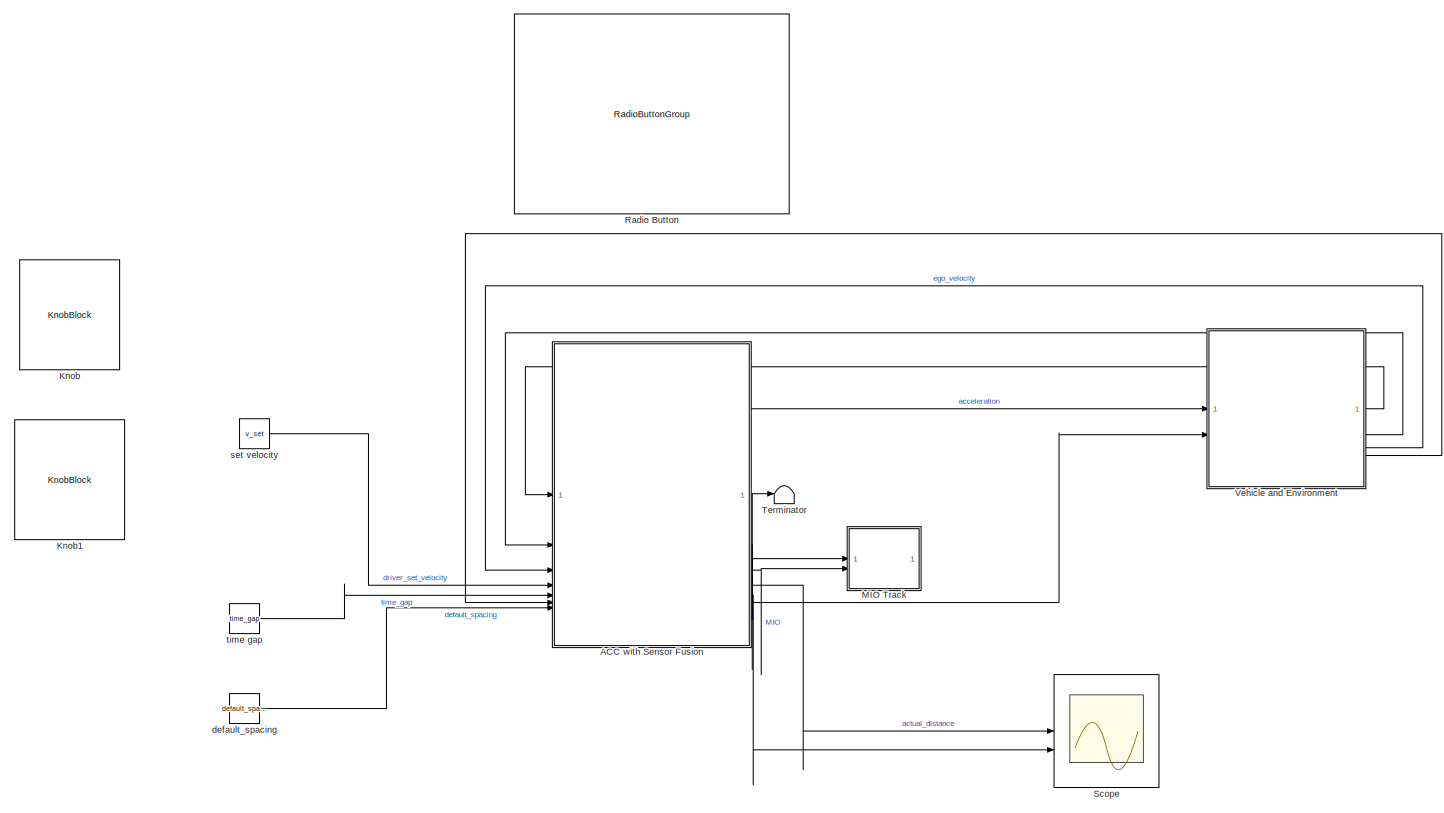
[diagram: root canvas - part 1/1, most of the canvas]
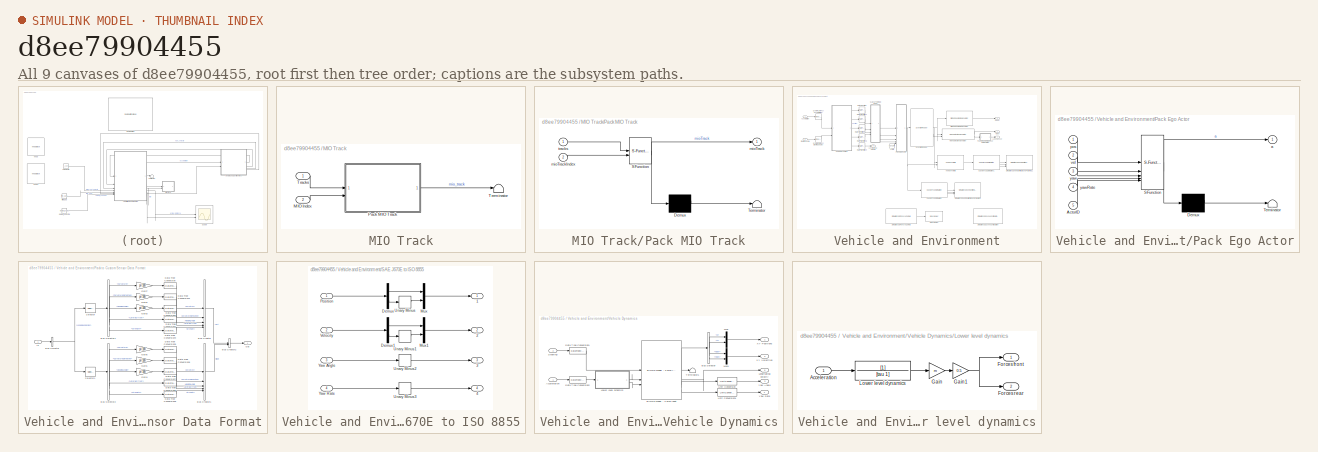
[diagram: thumbnail index - all 9 canvases of the model, root first then tree order]
MODEL slx_d8ee79904455
KIND model
CONFIG AbsTol = auto
CONFIG EnableMultiTasking = off
CONFIG FixedStep = 0.1
CONFIG MaxStep = auto
CONFIG MinStep = auto
CONFIG RelTol = 1e-3
CONFIG SampleTimeConstraint = Unconstrained
CONFIG SolverName = VariableStepAuto
CONFIG StartTime = 0.0
CONFIG StopTime = 30
BLOCK [ModelReference] ACC with Sensor Fusion
  CodeInterface = Top model
  ModelNameDialog = mpcACCWithSensorFusion.slx
  ModelReferenceVersion = 7.29
  PortSchema = {"entries":[{"content":{"sides":[{"content":{"connectorIds":["In1","In2","In6","In3","In4","In5","In7"]},"type":"ConnectorPlacement.EquallySpacedRectSide","uuid":"0a2f139f-ea02-4ae5-80e3-001557372466"},{"content":{"connectorIds":["Out1","Out2","Out3","Out4","Out5","Out6"],"side":"RIGHT"},"type":"ConnectorPlacement.EquallySpacedRectSide","uuid":"98612c27-09f5-4b9c-9afc-7845304978e5"},{"content":{"s...<+293ch>
BLOCK [KnobBlock] Knob
  ScaleMax = 40
BLOCK [KnobBlock] Knob1
  ScaleMax = 3
BLOCK [SubSystem] MIO Track
BLOCK [Inport] MIO Track/MIO Index
  Port = 2
BLOCK [SubSystem] MIO Track/Pack MIO Track
  ErrorFcn = Stateflow.Translate.translate
  PermitHierarchicalResolution = ExplicitOnly
  SFBlockType = MATLAB Function
  TreatAsAtomicUnit = on
BLOCK [Demux] MIO Track/Pack MIO Track/ Demux 
  Outputs = 1
BLOCK [S-Function] MIO Track/Pack MIO Track/ SFunction 
  EnableBusSupport = on
  FunctionName = sf_sfun
  PortCounts = [2 2]
  SFcnIsStateOwnerBlock = off
  SFunctionDeploymentMode = off
  Tag = Stateflow S-Function 2
BLOCK [Terminator] MIO Track/Pack MIO Track/ Terminator 
BLOCK [Outport] MIO Track/Pack MIO Track/mioTrack
  VectorParamsAs1DForOutWhenUnconnected = off
BLOCK [Inport] MIO Track/Pack MIO Track/mioTrackIndex
  Port = 2
BLOCK [Inport] MIO Track/Pack MIO Track/tracks
BLOCK [Terminator] MIO Track/Terminator
BLOCK [Inport] MIO Track/Tracks
BLOCK [RadioButtonGroup] Radio Button
  ButtonGroupName = Group
  SelectedLabel = Pleasent Weather
BLOCK [Scope] Scope
  Floating = off
  NumInputPorts = 2
  ScopeSpecificationString = Simulink.scopes.TimeScopeBlockCfg('CurrentConfiguration', extmgr.ConfigurationSet(extmgr.Configuration('Core','General UI',true),extmgr.Configuration('Core','Source UI',true),extmgr.Configuration('Sources','WiredSimulink',true),extmgr.Configuration('Visuals','Time Domain',true),extmgr.Configuration('Tools','Plot Navigation',true),extmgr.Configuration('Tools','Measurements',true)),'Version','2023b'...<+1ch>
BLOCK [Terminator] Terminator
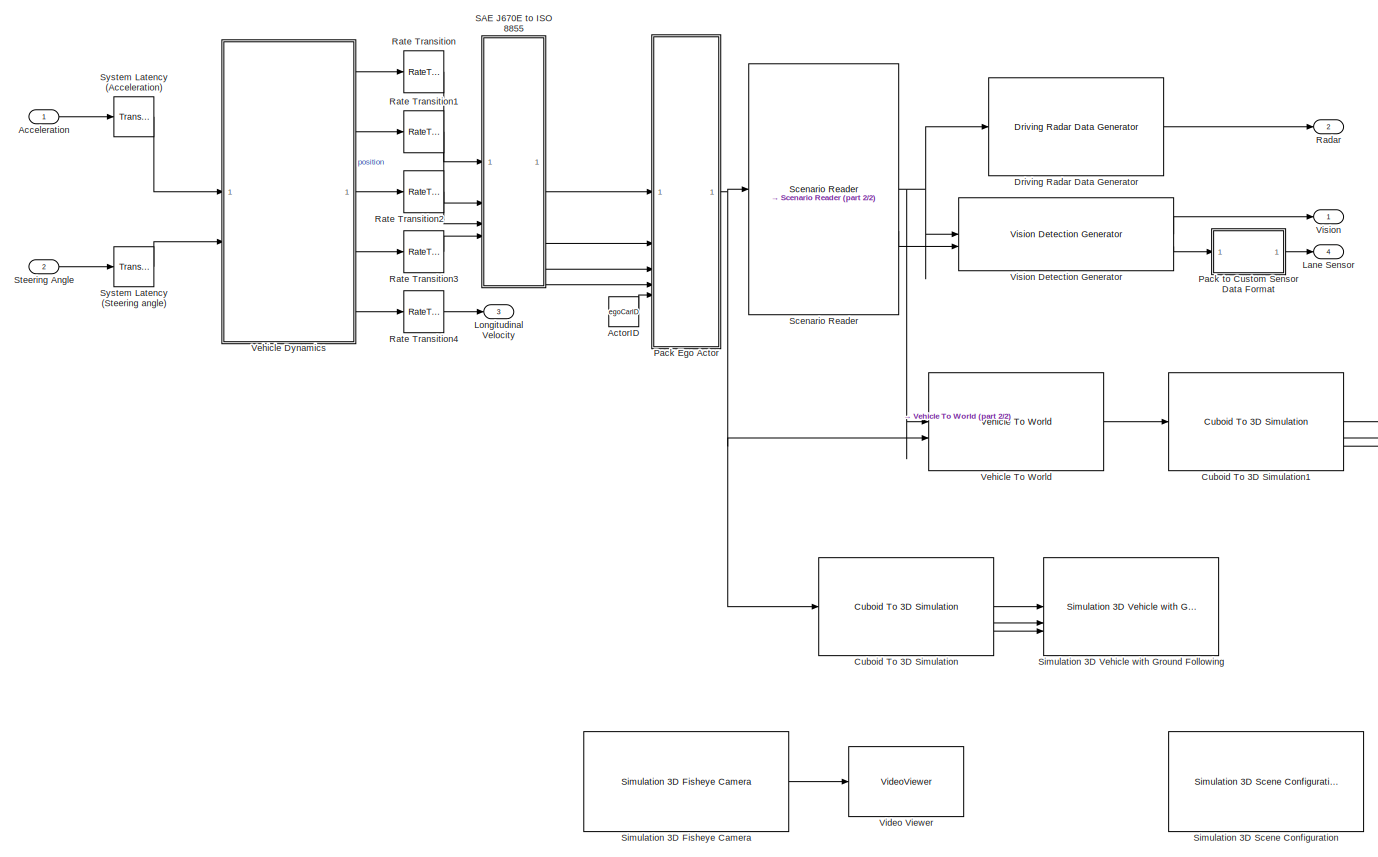
[diagram: Vehicle and Environment - part 1/2, most of the canvas]
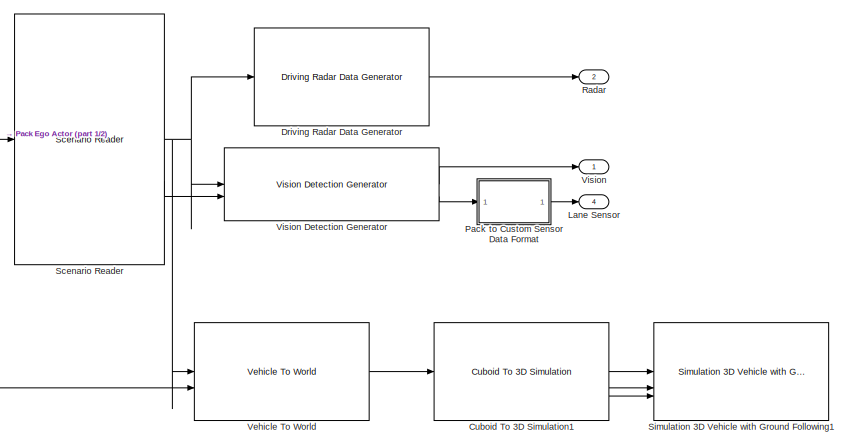
[diagram: Vehicle and Environment - part 2/2, middle right region]
BLOCK [SubSystem] Vehicle and Environment
BLOCK [Inport] Vehicle and Environment/Acceleration
  Unit = m/s^2
BLOCK [Constant] Vehicle and Environment/ActorID
  Value = egoCarID
BLOCK [Reference] Vehicle and Environment/Cuboid To 3D Simulation  REF=drivingscenarioandsensors/Cuboid To 3D Simulation
  Commented = on
  SourceBlock = drivingscenarioandsensors/Cuboid To 3D Simulation
  SourceType = driving.scenario.internal.CuboidTo3DSimulation
BLOCK [Reference] Vehicle and Environment/Cuboid To 3D Simulation1  REF=drivingscenarioandsensors/Cuboid To 3D Simulation
  Commented = on
  SourceBlock = drivingscenarioandsensors/Cuboid To 3D Simulation
  SourceType = driving.scenario.internal.CuboidTo3DSimulation
BLOCK [Reference] Vehicle and Environment/Driving Radar Data Generator  REF=drivingscenarioandsensors/Driving Radar Data Generator
  SourceBlock = drivingscenarioandsensors/Driving Radar Data Generator
  SourceType = drivingRadarDataGenerator
BLOCK [Outport] Vehicle and Environment/Lane Sensor
  Port = 4
  VectorParamsAs1DForOutWhenUnconnected = off
BLOCK [Outport] Vehicle and Environment/Longitudinal Velocity
  Port = 3
  VectorParamsAs1DForOutWhenUnconnected = off
BLOCK [SubSystem] Vehicle and Environment/Pack Ego Actor
  ErrorFcn = Stateflow.Translate.translate
  PermitHierarchicalResolution = ExplicitOnly
  SFBlockType = MATLAB Function
  TreatAsAtomicUnit = on
BLOCK [Demux] Vehicle and Environment/Pack Ego Actor/ Demux 
  Outputs = 1
BLOCK [S-Function] Vehicle and Environment/Pack Ego Actor/ SFunction 
  EnableBusSupport = on
  FunctionName = sf_sfun
  PortCounts = [5 2]
  SFcnIsStateOwnerBlock = off
  SFunctionDeploymentMode = off
  Tag = Stateflow S-Function 1
BLOCK [Terminator] Vehicle and Environment/Pack Ego Actor/ Terminator 
BLOCK [Inport] Vehicle and Environment/Pack Ego Actor/ActorID
  Port = 5
BLOCK [Outport] Vehicle and Environment/Pack Ego Actor/a
  VectorParamsAs1DForOutWhenUnconnected = off
BLOCK [Inport] Vehicle and Environment/Pack Ego Actor/pos
BLOCK [Inport] Vehicle and Environment/Pack Ego Actor/vel
  Port = 2
BLOCK [Inport] Vehicle and Environment/Pack Ego Actor/yaw
  Port = 3
BLOCK [Inport] Vehicle and Environment/Pack Ego Actor/yawRate
  Port = 4
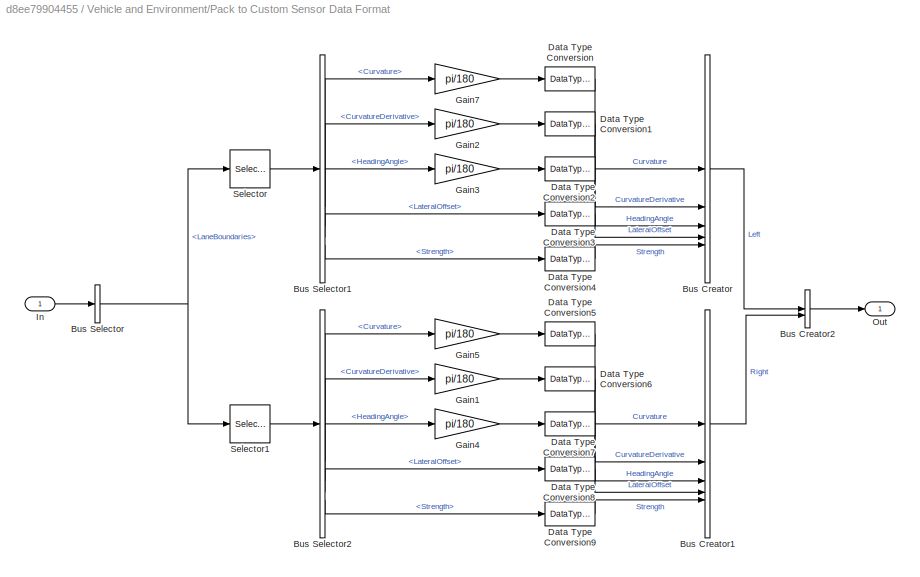
BLOCK [SubSystem] Vehicle and Environment/Pack to Custom Sensor Data Format
BLOCK [BusCreator] Vehicle and Environment/Pack to Custom Sensor Data Format/Bus Creator
  DisplayOption = bar
  InheritFromInputs = on
  Inputs = 5
  OutDataTypeStr = Bus: LaneSensorBoundaries
BLOCK [BusCreator] Vehicle and Environment/Pack to Custom Sensor Data Format/Bus Creator1
  DisplayOption = bar
  InheritFromInputs = on
  Inputs = 5
  OutDataTypeStr = Bus: LaneSensorBoundaries
BLOCK [BusCreator] Vehicle and Environment/Pack to Custom Sensor Data Format/Bus Creator2
  DisplayOption = bar
  InheritFromInputs = on
  Inputs = 2
  OutDataTypeStr = Bus: LaneSensor
BLOCK [BusSelector] Vehicle and Environment/Pack to Custom Sensor Data Format/Bus Selector
  OutputSignals = LaneBoundaries
BLOCK [BusSelector] Vehicle and Environment/Pack to Custom Sensor Data Format/Bus Selector1
  OutputSignals = Curvature,CurvatureDerivative,HeadingAngle,LateralOffset,Strength
BLOCK [BusSelector] Vehicle and Environment/Pack to Custom Sensor Data Format/Bus Selector2
  OutputSignals = Curvature,CurvatureDerivative,HeadingAngle,LateralOffset,Strength
BLOCK [DataTypeConversion] Vehicle and Environment/Pack to Custom Sensor Data Format/Data Type Conversion
  RndMeth = Floor
  SaturateOnIntegerOverflow = off
BLOCK [DataTypeConversion] Vehicle and Environment/Pack to Custom Sensor Data Format/Data Type Conversion1
  RndMeth = Floor
  SaturateOnIntegerOverflow = off
BLOCK [DataTypeConversion] Vehicle and Environment/Pack to Custom Sensor Data Format/Data Type Conversion2
  RndMeth = Floor
  SaturateOnIntegerOverflow = off
BLOCK [DataTypeConversion] Vehicle and Environment/Pack to Custom Sensor Data Format/Data Type Conversion3
  RndMeth = Floor
  SaturateOnIntegerOverflow = off
BLOCK [DataTypeConversion] Vehicle and Environment/Pack to Custom Sensor Data Format/Data Type Conversion4
  RndMeth = Floor
  SaturateOnIntegerOverflow = off
BLOCK [DataTypeConversion] Vehicle and Environment/Pack to Custom Sensor Data Format/Data Type Conversion5
  RndMeth = Floor
  SaturateOnIntegerOverflow = off
BLOCK [DataTypeConversion] Vehicle and Environment/Pack to Custom Sensor Data Format/Data Type Conversion6
  RndMeth = Floor
  SaturateOnIntegerOverflow = off
BLOCK [DataTypeConversion] Vehicle and Environment/Pack to Custom Sensor Data Format/Data Type Conversion7
  RndMeth = Floor
  SaturateOnIntegerOverflow = off
BLOCK [DataTypeConversion] Vehicle and Environment/Pack to Custom Sensor Data Format/Data Type Conversion8
  RndMeth = Floor
  SaturateOnIntegerOverflow = off
BLOCK [DataTypeConversion] Vehicle and Environment/Pack to Custom Sensor Data Format/Data Type Conversion9
  RndMeth = Floor
  SaturateOnIntegerOverflow = off
BLOCK [Gain] Vehicle and Environment/Pack to Custom Sensor Data Format/Gain1
  Gain = pi/180
BLOCK [Gain] Vehicle and Environment/Pack to Custom Sensor Data Format/Gain2
  Gain = pi/180
BLOCK [Gain] Vehicle and Environment/Pack to Custom Sensor Data Format/Gain3
  Gain = pi/180
BLOCK [Gain] Vehicle and Environment/Pack to Custom Sensor Data Format/Gain4
  Gain = pi/180
BLOCK [Gain] Vehicle and Environment/Pack to Custom Sensor Data Format/Gain5
  Gain = pi/180
BLOCK [Gain] Vehicle and Environment/Pack to Custom Sensor Data Format/Gain7
  Gain = pi/180
BLOCK [Inport] Vehicle and Environment/Pack to Custom Sensor Data Format/In
BLOCK [Outport] Vehicle and Environment/Pack to Custom Sensor Data Format/Out
  VectorParamsAs1DForOutWhenUnconnected = off
BLOCK [Selector] Vehicle and Environment/Pack to Custom Sensor Data Format/Selector
  IndexOptions = Index vector (dialog)
  Indices = 1
  InputPortWidth = 2
  OutputSizes = 1
BLOCK [Selector] Vehicle and Environment/Pack to Custom Sensor Data Format/Selector1
  IndexOptions = Index vector (dialog)
  Indices = 2
  InputPortWidth = 2
  OutputSizes = 1
BLOCK [Outport] Vehicle and Environment/Radar
  Port = 2
  VectorParamsAs1DForOutWhenUnconnected = off
BLOCK [RateTransition] Vehicle and Environment/Rate Transition
  OutPortSampleTime = Ts
BLOCK [RateTransition] Vehicle and Environment/Rate Transition1
  OutPortSampleTime = Ts
BLOCK [RateTransition] Vehicle and Environment/Rate Transition2
  OutPortSampleTime = Ts
BLOCK [RateTransition] Vehicle and Environment/Rate Transition3
  OutPortSampleTime = Ts
BLOCK [RateTransition] Vehicle and Environment/Rate Transition4
  OutPortSampleTime = Ts
BLOCK [SubSystem] Vehicle and Environment/SAE J670E to ISO 8855
BLOCK [Outport] Vehicle and Environment/SAE J670E to ISO 8855/1
  VectorParamsAs1DForOutWhenUnconnected = off
BLOCK [Outport] Vehicle and Environment/SAE J670E to ISO 8855/2
  Port = 2
  VectorParamsAs1DForOutWhenUnconnected = off
BLOCK [Outport] Vehicle and Environment/SAE J670E to ISO 8855/3
  Port = 3
  VectorParamsAs1DForOutWhenUnconnected = off
BLOCK [Outport] Vehicle and Environment/SAE J670E to ISO 8855/4
  Port = 4
  VectorParamsAs1DForOutWhenUnconnected = off
BLOCK [Demux] Vehicle and Environment/SAE J670E to ISO 8855/Demux
  Outputs = 2
BLOCK [Demux] Vehicle and Environment/SAE J670E to ISO 8855/Demux1
  Outputs = 2
BLOCK [Mux] Vehicle and Environment/SAE J670E to ISO 8855/Mux
  DisplayOption = bar
  Inputs = 2
BLOCK [Mux] Vehicle and Environment/SAE J670E to ISO 8855/Mux1
  DisplayOption = bar
  Inputs = 2
BLOCK [Inport] Vehicle and Environment/SAE J670E to ISO 8855/Position
  Unit = m
BLOCK [UnaryMinus] Vehicle and Environment/SAE J670E to ISO 8855/Unary Minus
BLOCK [UnaryMinus] Vehicle and Environment/SAE J670E to ISO 8855/Unary Minus1
BLOCK [UnaryMinus] Vehicle and Environment/SAE J670E to ISO 8855/Unary Minus2
BLOCK [UnaryMinus] Vehicle and Environment/SAE J670E to ISO 8855/Unary Minus3
BLOCK [Inport] Vehicle and Environment/SAE J670E to ISO 8855/Velocity
  Port = 2
  Unit = m/s
BLOCK [Inport] Vehicle and Environment/SAE J670E to ISO 8855/Yaw Angle
  Port = 3
  Unit = deg
BLOCK [Inport] Vehicle and Environment/SAE J670E to ISO 8855/Yaw Rate
  Port = 4
  Unit = deg/s
BLOCK [Reference] Vehicle and Environment/Scenario Reader  REF=drivingscenarioandsensors/Scenario Reader
  SourceBlock = drivingscenarioandsensors/Scenario Reader
  SourceType = driving.scenario.internal.ScenarioReader
BLOCK [Reference] Vehicle and Environment/Simulation 3D Fisheye Camera  REF=sim3dcameralib/Simulation 3D Fisheye Camera
  Commented = on
  LibrarySourceBlock = drivingsim3d/Simulation 3D Fisheye Camera
  Priority = 1
  SourceBlock = sim3dcameralib/Simulation 3D Fisheye Camera
  SourceType = Simulation 3D Fisheye Camera
BLOCK [Reference] Vehicle and Environment/Simulation 3D Scene Configuration  REF=sim3dlib/Simulation 3D Scene Configuration
  Commented = on
  LibrarySourceBlock = sl3dlib/Simulation 3D/Simulation 3D Scene Configuration
  Priority = 0
  SourceBlock = sim3dlib/Simulation 3D Scene Configuration
  SourceType = Simulation 3D Scene Configuration
BLOCK [Reference] Vehicle and Environment/Simulation 3D Vehicle with Ground Following  REF=sim3dautolib/Simulation 3D Vehicle with Ground Following
  Commented = on
  LibrarySourceBlock = drivingsim3d/Simulation 3D Vehicle with Ground Following
  Priority = -1
  SourceBlock = sim3dautolib/Simulation 3D Vehicle with Ground Following
  SourceType = Simulation 3D Vehicle with Ground Following
BLOCK [Reference] Vehicle and Environment/Simulation 3D Vehicle with Ground Following1  REF=sim3dautolib/Simulation 3D Vehicle with Ground Following
  Commented = on
  LibrarySourceBlock = drivingsim3d/Simulation 3D Vehicle with Ground Following
  Priority = -1
  SourceBlock = sim3dautolib/Simulation 3D Vehicle with Ground Following
  SourceType = Simulation 3D Vehicle with Ground Following
BLOCK [Inport] Vehicle and Environment/Steering Angle
  Port = 2
  Unit = rad
BLOCK [TransportDelay] Vehicle and Environment/System Latency (Acceleration)
  DelayTime = Ts
BLOCK [TransportDelay] Vehicle and Environment/System Latency (Steering angle)
  DelayTime = Ts
BLOCK [SubSystem] Vehicle and Environment/Vehicle Dynamics
  VariantControl = Variant2
BLOCK [Inport] Vehicle and Environment/Vehicle Dynamics/Acceleration
  Unit = m/s^2
BLOCK [Reference] Vehicle and Environment/Vehicle Dynamics/Bicycle Model - Force Input  REF=autolibshared/Bicycle Model - Force Input
  LibrarySourceBlock = drivingscenarioandsensors/Bicycle Model - Force Input
  SourceBlock = autolibshared/Bicycle Model - Force Input
  SourceType = Vehicle Body 3DOF Lateral
BLOCK [BusSelector] Vehicle and Environment/Vehicle Dynamics/Bus Selector
  OutputSignals = InertFrm.FrntAxl.Disp.X,InertFrm.FrntAxl.Disp.Y,InertFrm.FrntAxl.Vel.Xdot,InertFrm.FrntAxl.Vel.Ydot
BLOCK [DataTypeConversion] Vehicle and Environment/Vehicle Dynamics/Data Type Conversion1
  RndMeth = Floor
  SaturateOnIntegerOverflow = off
BLOCK [DataTypeConversion] Vehicle and Environment/Vehicle Dynamics/Data Type Conversion2
  RndMeth = Floor
  SaturateOnIntegerOverflow = off
BLOCK [Outport] Vehicle and Environment/Vehicle Dynamics/Longitudinal velocity
  Port = 5
  VectorParamsAs1DForOutWhenUnconnected = off
BLOCK [SubSystem] Vehicle and Environment/Vehicle Dynamics/Lower level dynamics
BLOCK [Inport] Vehicle and Environment/Vehicle Dynamics/Lower level dynamics/Acceleration
BLOCK [Outport] Vehicle and Environment/Vehicle Dynamics/Lower level dynamics/Forces front
  VectorParamsAs1DForOutWhenUnconnected = off
BLOCK [Outport] Vehicle and Environment/Vehicle Dynamics/Lower level dynamics/Forces rear
  Port = 2
  VectorParamsAs1DForOutWhenUnconnected = off
BLOCK [Gain] Vehicle and Environment/Vehicle Dynamics/Lower level dynamics/Gain
  Gain = m
BLOCK [Gain] Vehicle and Environment/Vehicle Dynamics/Lower level dynamics/Gain1
  Gain = 0.5
BLOCK [TransferFcn] Vehicle and Environment/Vehicle Dynamics/Lower level dynamics/Lower level dynamics
  Denominator = [tau 1]
BLOCK [Mux] Vehicle and Environment/Vehicle Dynamics/Mux
  DisplayOption = bar
  Inputs = 2
BLOCK [Mux] Vehicle and Environment/Vehicle Dynamics/Mux1
  DisplayOption = bar
  Inputs = 2
BLOCK [Inport] Vehicle and Environment/Vehicle Dynamics/Steering
  Port = 2
  Unit = rad
BLOCK [Terminator] Vehicle and Environment/Vehicle Dynamics/Terminator1
BLOCK [UnitConversion] Vehicle and Environment/Vehicle Dynamics/Unit Conversion
  OutputType = Inherit: Inherit via back propagation
BLOCK [UnitConversion] Vehicle and Environment/Vehicle Dynamics/Unit Conversion1
  OutputType = Inherit: Inherit via back propagation
BLOCK [Outport] Vehicle and Environment/Vehicle Dynamics/XY Positions
  Unit = m
  VectorParamsAs1DForOutWhenUnconnected = off
BLOCK [Outport] Vehicle and Environment/Vehicle Dynamics/XY Velocities
  Port = 2
  Unit = m/s
  VectorParamsAs1DForOutWhenUnconnected = off
BLOCK [Outport] Vehicle and Environment/Vehicle Dynamics/Yaw Angle
  Port = 3
  Unit = deg
  VectorParamsAs1DForOutWhenUnconnected = off
BLOCK [Outport] Vehicle and Environment/Vehicle Dynamics/Yaw Rate
  Port = 4
  Unit = degree/s
  VectorParamsAs1DForOutWhenUnconnected = off
BLOCK [Reference] Vehicle and Environment/Vehicle To World  REF=drivingscenarioandsensors/Vehicle To World
  Commented = on
  SourceBlock = drivingscenarioandsensors/Vehicle To World
  SourceType = driving.scenario.internal.VehicleToWorld
BLOCK [VideoViewer] Vehicle and Environment/Video Viewer
  Commented = on
  FigPos = [2041 741 418 304]
  ScopeSpecificationString = vipscopes.VideoViewerScopeCfg('CurrentConfiguration', extmgr.ConfigurationSet(extmgr.Configuration('Core','General UI',true),extmgr.Configuration('Core','Source UI',true),extmgr.Configuration('Sources','WiredSimulink',true),extmgr.Configuration('Visuals','Video',true),extmgr.Configuration('Tools','Image Navigation Tools',true),extmgr.Configuration('Tools','Image Tool',true),extmgr.Configuration('T...<+76ch>
BLOCK [Outport] Vehicle and Environment/Vision
  VectorParamsAs1DForOutWhenUnconnected = off
BLOCK [Reference] Vehicle and Environment/Vision Detection Generator  REF=drivingscenarioandsensors/Vision Detection Generator
  SourceBlock = drivingscenarioandsensors/Vision Detection Generator
  SourceType = visionDetectionGenerator
BLOCK [Constant] default_spacing
  Value = default_spacing
BLOCK [Constant] set velocity
  Value = v_set
BLOCK [Constant] time gap
  Value = time_gap
LINE ACC with Sensor Fusion:1 -> Vehicle and Environment:1
NET ACC with Sensor Fusion:2 -> MIO Track:1, Terminator:1
LINE ACC with Sensor Fusion:3 -> MIO Track:2
LINE ACC with Sensor Fusion:4 -> Scope:1
LINE ACC with Sensor Fusion:5 -> Scope:2
LINE ACC with Sensor Fusion:6 -> Vehicle and Environment:2
LINE MIO Track/MIO Index:1 -> MIO Track/Pack MIO Track:2
LINE MIO Track/Pack MIO Track:1 -> MIO Track/Terminator:1
LINE MIO Track/Tracks:1 -> MIO Track/Pack MIO Track:1
LINE Vehicle and Environment/Acceleration:1 -> Vehicle and Environment/System Latency (Acceleration):1
LINE Vehicle and Environment/ActorID:1 -> Vehicle and Environment/Pack Ego Actor:5
LINE Vehicle and Environment/Cuboid To 3D Simulation1:1 -> Vehicle and Environment/Simulation 3D Vehicle with Ground Following1:1
LINE Vehicle and Environment/Cuboid To 3D Simulation1:2 -> Vehicle and Environment/Simulation 3D Vehicle with Ground Following1:2
LINE Vehicle and Environment/Cuboid To 3D Simulation1:3 -> Vehicle and Environment/Simulation 3D Vehicle with Ground Following1:3
LINE Vehicle and Environment/Cuboid To 3D Simulation:1 -> Vehicle and Environment/Simulation 3D Vehicle with Ground Following:1
LINE Vehicle and Environment/Cuboid To 3D Simulation:2 -> Vehicle and Environment/Simulation 3D Vehicle with Ground Following:2
LINE Vehicle and Environment/Cuboid To 3D Simulation:3 -> Vehicle and Environment/Simulation 3D Vehicle with Ground Following:3
LINE Vehicle and Environment/Driving Radar Data Generator:1 -> Vehicle and Environment/Radar:1
NET Vehicle and Environment/Pack Ego Actor:1 -> Vehicle and Environment/Cuboid To 3D Simulation:1, Vehicle and Environment/Scenario Reader:1, Vehicle and Environment/Vehicle To World:2
LINE Vehicle and Environment/Pack to Custom Sensor Data Format/Bus Creator1:1 -> Vehicle and Environment/Pack to Custom Sensor Data Format/Bus Creator2:2
LINE Vehicle and Environment/Pack to Custom Sensor Data Format/Bus Creator2:1 -> Vehicle and Environment/Pack to Custom Sensor Data Format/Out:1
LINE Vehicle and Environment/Pack to Custom Sensor Data Format/Bus Creator:1 -> Vehicle and Environment/Pack to Custom Sensor Data Format/Bus Creator2:1
LINE Vehicle and Environment/Pack to Custom Sensor Data Format/Bus Selector1:1 -> Vehicle and Environment/Pack to Custom Sensor Data Format/Gain7:1
LINE Vehicle and Environment/Pack to Custom Sensor Data Format/Bus Selector1:2 -> Vehicle and Environment/Pack to Custom Sensor Data Format/Gain2:1
LINE Vehicle and Environment/Pack to Custom Sensor Data Format/Bus Selector1:3 -> Vehicle and Environment/Pack to Custom Sensor Data Format/Gain3:1
LINE Vehicle and Environment/Pack to Custom Sensor Data Format/Bus Selector1:4 -> Vehicle and Environment/Pack to Custom Sensor Data Format/Data Type Conversion3:1
LINE Vehicle and Environment/Pack to Custom Sensor Data Format/Bus Selector1:5 -> Vehicle and Environment/Pack to Custom Sensor Data Format/Data Type Conversion4:1
LINE Vehicle and Environment/Pack to Custom Sensor Data Format/Bus Selector2:1 -> Vehicle and Environment/Pack to Custom Sensor Data Format/Gain5:1
LINE Vehicle and Environment/Pack to Custom Sensor Data Format/Bus Selector2:2 -> Vehicle and Environment/Pack to Custom Sensor Data Format/Gain1:1
LINE Vehicle and Environment/Pack to Custom Sensor Data Format/Bus Selector2:3 -> Vehicle and Environment/Pack to Custom Sensor Data Format/Gain4:1
LINE Vehicle and Environment/Pack to Custom Sensor Data Format/Bus Selector2:4 -> Vehicle and Environment/Pack to Custom Sensor Data Format/Data Type Conversion8:1
LINE Vehicle and Environment/Pack to Custom Sensor Data Format/Bus Selector2:5 -> Vehicle and Environment/Pack to Custom Sensor Data Format/Data Type Conversion9:1
NET Vehicle and Environment/Pack to Custom Sensor Data Format/Bus Selector:1 -> Vehicle and Environment/Pack to Custom Sensor Data Format/Selector1:1, Vehicle and Environment/Pack to Custom Sensor Data Format/Selector:1
LINE Vehicle and Environment/Pack to Custom Sensor Data Format/Data Type Conversion1:1 -> Vehicle and Environment/Pack to Custom Sensor Data Format/Bus Creator:2
LINE Vehicle and Environment/Pack to Custom Sensor Data Format/Data Type Conversion2:1 -> Vehicle and Environment/Pack to Custom Sensor Data Format/Bus Creator:3
LINE Vehicle and Environment/Pack to Custom Sensor Data Format/Data Type Conversion3:1 -> Vehicle and Environment/Pack to Custom Sensor Data Format/Bus Creator:4
LINE Vehicle and Environment/Pack to Custom Sensor Data Format/Data Type Conversion4:1 -> Vehicle and Environment/Pack to Custom Sensor Data Format/Bus Creator:5
LINE Vehicle and Environment/Pack to Custom Sensor Data Format/Data Type Conversion5:1 -> Vehicle and Environment/Pack to Custom Sensor Data Format/Bus Creator1:1
LINE Vehicle and Environment/Pack to Custom Sensor Data Format/Data Type Conversion6:1 -> Vehicle and Environment/Pack to Custom Sensor Data Format/Bus Creator1:2
LINE Vehicle and Environment/Pack to Custom Sensor Data Format/Data Type Conversion7:1 -> Vehicle and Environment/Pack to Custom Sensor Data Format/Bus Creator1:3
LINE Vehicle and Environment/Pack to Custom Sensor Data Format/Data Type Conversion8:1 -> Vehicle and Environment/Pack to Custom Sensor Data Format/Bus Creator1:4
LINE Vehicle and Environment/Pack to Custom Sensor Data Format/Data Type Conversion9:1 -> Vehicle and Environment/Pack to Custom Sensor Data Format/Bus Creator1:5
LINE Vehicle and Environment/Pack to Custom Sensor Data Format/Data Type Conversion:1 -> Vehicle and Environment/Pack to Custom Sensor Data Format/Bus Creator:1
LINE Vehicle and Environment/Pack to Custom Sensor Data Format/Gain1:1 -> Vehicle and Environment/Pack to Custom Sensor Data Format/Data Type Conversion6:1
LINE Vehicle and Environment/Pack to Custom Sensor Data Format/Gain2:1 -> Vehicle and Environment/Pack to Custom Sensor Data Format/Data Type Conversion1:1
LINE Vehicle and Environment/Pack to Custom Sensor Data Format/Gain3:1 -> Vehicle and Environment/Pack to Custom Sensor Data Format/Data Type Conversion2:1
LINE Vehicle and Environment/Pack to Custom Sensor Data Format/Gain4:1 -> Vehicle and Environment/Pack to Custom Sensor Data Format/Data Type Conversion7:1
LINE Vehicle and Environment/Pack to Custom Sensor Data Format/Gain5:1 -> Vehicle and Environment/Pack to Custom Sensor Data Format/Data Type Conversion5:1
LINE Vehicle and Environment/Pack to Custom Sensor Data Format/Gain7:1 -> Vehicle and Environment/Pack to Custom Sensor Data Format/Data Type Conversion:1
LINE Vehicle and Environment/Pack to Custom Sensor Data Format/In:1 -> Vehicle and Environment/Pack to Custom Sensor Data Format/Bus Selector:1
LINE Vehicle and Environment/Pack to Custom Sensor Data Format/Selector1:1 -> Vehicle and Environment/Pack to Custom Sensor Data Format/Bus Selector2:1
LINE Vehicle and Environment/Pack to Custom Sensor Data Format/Selector:1 -> Vehicle and Environment/Pack to Custom Sensor Data Format/Bus Selector1:1
LINE Vehicle and Environment/Pack to Custom Sensor Data Format:1 -> Vehicle and Environment/Lane Sensor:1
LINE Vehicle and Environment/Rate Transition1:1 -> Vehicle and Environment/SAE J670E to ISO 8855:2
LINE Vehicle and Environment/Rate Transition2:1 -> Vehicle and Environment/SAE J670E to ISO 8855:3
LINE Vehicle and Environment/Rate Transition3:1 -> Vehicle and Environment/SAE J670E to ISO 8855:4
LINE Vehicle and Environment/Rate Transition4:1 -> Vehicle and Environment/Longitudinal Velocity:1
LINE Vehicle and Environment/Rate Transition:1 -> Vehicle and Environment/SAE J670E to ISO 8855:1
LINE Vehicle and Environment/SAE J670E to ISO 8855/Demux1:1 -> Vehicle and Environment/SAE J670E to ISO 8855/Mux1:1
LINE Vehicle and Environment/SAE J670E to ISO 8855/Demux1:2 -> Vehicle and Environment/SAE J670E to ISO 8855/Unary Minus1:1
LINE Vehicle and Environment/SAE J670E to ISO 8855/Demux:1 -> Vehicle and Environment/SAE J670E to ISO 8855/Mux:1
LINE Vehicle and Environment/SAE J670E to ISO 8855/Demux:2 -> Vehicle and Environment/SAE J670E to ISO 8855/Unary Minus:1
LINE Vehicle and Environment/SAE J670E to ISO 8855/Mux1:1 -> Vehicle and Environment/SAE J670E to ISO 8855/2:1
LINE Vehicle and Environment/SAE J670E to ISO 8855/Mux:1 -> Vehicle and Environment/SAE J670E to ISO 8855/1:1
LINE Vehicle and Environment/SAE J670E to ISO 8855/Position:1 -> Vehicle and Environment/SAE J670E to ISO 8855/Demux:1
LINE Vehicle and Environment/SAE J670E to ISO 8855/Unary Minus1:1 -> Vehicle and Environment/SAE J670E to ISO 8855/Mux1:2
LINE Vehicle and Environment/SAE J670E to ISO 8855/Unary Minus2:1 -> Vehicle and Environment/SAE J670E to ISO 8855/3:1
LINE Vehicle and Environment/SAE J670E to ISO 8855/Unary Minus3:1 -> Vehicle and Environment/SAE J670E to ISO 8855/4:1
LINE Vehicle and Environment/SAE J670E to ISO 8855/Unary Minus:1 -> Vehicle and Environment/SAE J670E to ISO 8855/Mux:2
LINE Vehicle and Environment/SAE J670E to ISO 8855/Velocity:1 -> Vehicle and Environment/SAE J670E to ISO 8855/Demux1:1
LINE Vehicle and Environment/SAE J670E to ISO 8855/Yaw Angle:1 -> Vehicle and Environment/SAE J670E to ISO 8855/Unary Minus2:1
LINE Vehicle and Environment/SAE J670E to ISO 8855/Yaw Rate:1 -> Vehicle and Environment/SAE J670E to ISO 8855/Unary Minus3:1
LINE Vehicle and Environment/SAE J670E to ISO 8855:1 -> Vehicle and Environment/Pack Ego Actor:1
LINE Vehicle and Environment/SAE J670E to ISO 8855:2 -> Vehicle and Environment/Pack Ego Actor:2
LINE Vehicle and Environment/SAE J670E to ISO 8855:3 -> Vehicle and Environment/Pack Ego Actor:3
LINE Vehicle and Environment/SAE J670E to ISO 8855:4 -> Vehicle and Environment/Pack Ego Actor:4
NET Vehicle and Environment/Scenario Reader:1 -> Vehicle and Environment/Driving Radar Data Generator:1, Vehicle and Environment/Vehicle To World:1, Vehicle and Environment/Vision Detection Generator:1
LINE Vehicle and Environment/Scenario Reader:2 -> Vehicle and Environment/Vision Detection Generator:2
LINE Vehicle and Environment/Simulation 3D Fisheye Camera:1 -> Vehicle and Environment/Video Viewer:1
LINE Vehicle and Environment/Steering Angle:1 -> Vehicle and Environment/System Latency (Steering angle):1
LINE Vehicle and Environment/System Latency (Acceleration):1 -> Vehicle and Environment/Vehicle Dynamics:1
LINE Vehicle and Environment/System Latency (Steering angle):1 -> Vehicle and Environment/Vehicle Dynamics:2
LINE Vehicle and Environment/Vehicle Dynamics/Acceleration:1 -> Vehicle and Environment/Vehicle Dynamics/Data Type Conversion2:1
LINE Vehicle and Environment/Vehicle Dynamics/Bicycle Model - Force Input:1 -> Vehicle and Environment/Vehicle Dynamics/Bus Selector:1
LINE Vehicle and Environment/Vehicle Dynamics/Bicycle Model - Force Input:2 -> Vehicle and Environment/Vehicle Dynamics/Longitudinal velocity:1
LINE Vehicle and Environment/Vehicle Dynamics/Bicycle Model - Force Input:3 -> Vehicle and Environment/Vehicle Dynamics/Terminator1:1
LINE Vehicle and Environment/Vehicle Dynamics/Bicycle Model - Force Input:4 -> Vehicle and Environment/Vehicle Dynamics/Unit Conversion:1
LINE Vehicle and Environment/Vehicle Dynamics/Bicycle Model - Force Input:5 -> Vehicle and Environment/Vehicle Dynamics/Unit Conversion1:1
LINE Vehicle and Environment/Vehicle Dynamics/Bus Selector:1 -> Vehicle and Environment/Vehicle Dynamics/Mux:1
LINE Vehicle and Environment/Vehicle Dynamics/Bus Selector:2 -> Vehicle and Environment/Vehicle Dynamics/Mux:2
LINE Vehicle and Environment/Vehicle Dynamics/Bus Selector:3 -> Vehicle and Environment/Vehicle Dynamics/Mux1:1
LINE Vehicle and Environment/Vehicle Dynamics/Bus Selector:4 -> Vehicle and Environment/Vehicle Dynamics/Mux1:2
LINE Vehicle and Environment/Vehicle Dynamics/Data Type Conversion1:1 -> Vehicle and Environment/Vehicle Dynamics/Bicycle Model - Force Input:1
LINE Vehicle and Environment/Vehicle Dynamics/Data Type Conversion2:1 -> Vehicle and Environment/Vehicle Dynamics/Lower level dynamics:1
LINE Vehicle and Environment/Vehicle Dynamics/Lower level dynamics/Acceleration:1 -> Vehicle and Environment/Vehicle Dynamics/Lower level dynamics/Lower level dynamics:1
NET Vehicle and Environment/Vehicle Dynamics/Lower level dynamics/Gain1:1 -> Vehicle and Environment/Vehicle Dynamics/Lower level dynamics/Forces front:1, Vehicle and Environment/Vehicle Dynamics/Lower level dynamics/Forces rear:1
LINE Vehicle and Environment/Vehicle Dynamics/Lower level dynamics/Gain:1 -> Vehicle and Environment/Vehicle Dynamics/Lower level dynamics/Gain1:1
LINE Vehicle and Environment/Vehicle Dynamics/Lower level dynamics/Lower level dynamics:1 -> Vehicle and Environment/Vehicle Dynamics/Lower level dynamics/Gain:1
LINE Vehicle and Environment/Vehicle Dynamics/Lower level dynamics:1 -> Vehicle and Environment/Vehicle Dynamics/Bicycle Model - Force Input:2
LINE Vehicle and Environment/Vehicle Dynamics/Lower level dynamics:2 -> Vehicle and Environment/Vehicle Dynamics/Bicycle Model - Force Input:3
LINE Vehicle and Environment/Vehicle Dynamics/Mux1:1 -> Vehicle and Environment/Vehicle Dynamics/XY Velocities:1
LINE Vehicle and Environment/Vehicle Dynamics/Mux:1 -> Vehicle and Environment/Vehicle Dynamics/XY Positions:1
LINE Vehicle and Environment/Vehicle Dynamics/Steering:1 -> Vehicle and Environment/Vehicle Dynamics/Data Type Conversion1:1
LINE Vehicle and Environment/Vehicle Dynamics/Unit Conversion1:1 -> Vehicle and Environment/Vehicle Dynamics/Yaw Rate:1
LINE Vehicle and Environment/Vehicle Dynamics/Unit Conversion:1 -> Vehicle and Environment/Vehicle Dynamics/Yaw Angle:1
LINE Vehicle and Environment/Vehicle Dynamics:1 -> Vehicle and Environment/Rate Transition:1
LINE Vehicle and Environment/Vehicle Dynamics:2 -> Vehicle and Environment/Rate Transition1:1
LINE Vehicle and Environment/Vehicle Dynamics:3 -> Vehicle and Environment/Rate Transition2:1
LINE Vehicle and Environment/Vehicle Dynamics:4 -> Vehicle and Environment/Rate Transition3:1
LINE Vehicle and Environment/Vehicle Dynamics:5 -> Vehicle and Environment/Rate Transition4:1
LINE Vehicle and Environment/Vehicle To World:1 -> Vehicle and Environment/Cuboid To 3D Simulation1:1
LINE Vehicle and Environment/Vision Detection Generator:1 -> Vehicle and Environment/Vision:1
LINE Vehicle and Environment/Vision Detection Generator:2 -> Vehicle and Environment/Pack to Custom Sensor Data Format:1
LINE Vehicle and Environment:1 -> ACC with Sensor Fusion:1
LINE Vehicle and Environment:2 -> ACC with Sensor Fusion:2
LINE Vehicle and Environment:3 -> ACC with Sensor Fusion:3
LINE Vehicle and Environment:4 -> ACC with Sensor Fusion:6
LINE default_spacing:1 -> ACC with Sensor Fusion:7
LINE set velocity:1 -> ACC with Sensor Fusion:4
LINE time gap:1 -> ACC with Sensor Fusion:5
note: NET lines group one-source signal fan-out (src -> all destinations, sorted); 1:1 wires keep LINE
CHART Vehicle and Environment/Pack Ego Actor states=1 transitions=1
  STATE_LABEL 'eML_blk_kernel()'
  STATE_LABEL "SCRIPT:\nfunction a = packEgo(pos,vel,yaw,yawRate,ActorID)\n% Pack ego information into a single ego actor bus\n%\n% Imoprtant note:\n% Output is a bus of type BusActorsActors. This is the same bus used by the\n% Scenario Reader to output an individual actor. If you change the\n% output bus name of Scenario Reader change the output bus name here\n% as well by clicking on 'Edit Data' in the menu above.\n\na ...<+214ch>"
CHART MIO Track/Pack MIO Track states=1 transitions=1
  STATE_LABEL 'eML_blk_kernel()'
  STATE_LABEL 'SCRIPT:\nfunction mioTrack = fcn(tracks, mioTrackIndex)\n% Extract MIO track and package for visualization in Birds Eye Scope\n\nmioTrack = tracks;\n\nif mioTrackIndex > 0\n    % First track represents MIO\n    mioTrack.NumTracks = 1;\n    mioTrack.Tracks(1) = tracks.Tracks(mioTrackIndex);\nelse\n    % No valid MIO track\n    mioTrack.NumTracks = 0;\nend\n'
CHART  states=0 transitions=0
CHART  states=0 transitions=0
